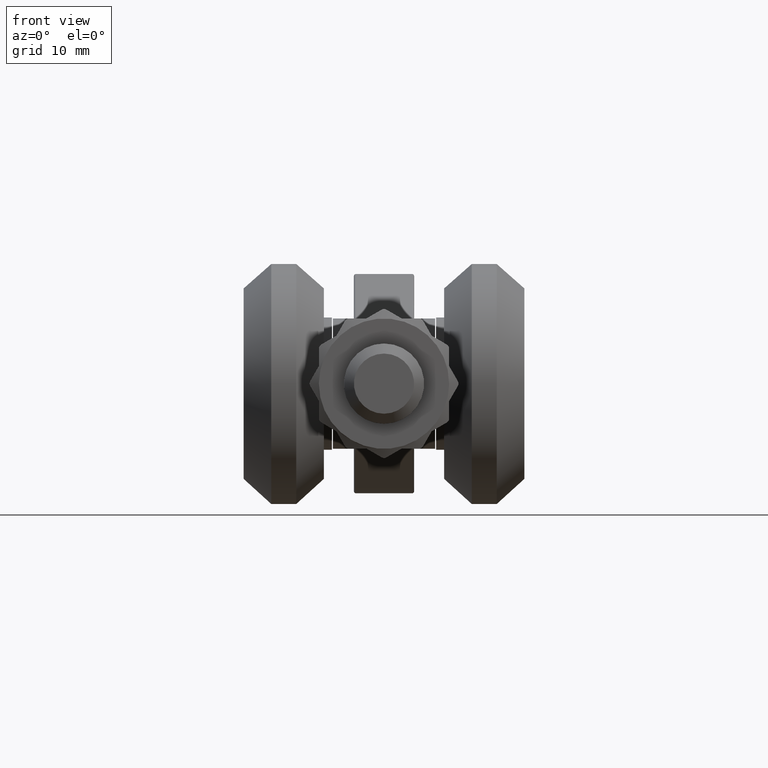
[diagram: clean part render]
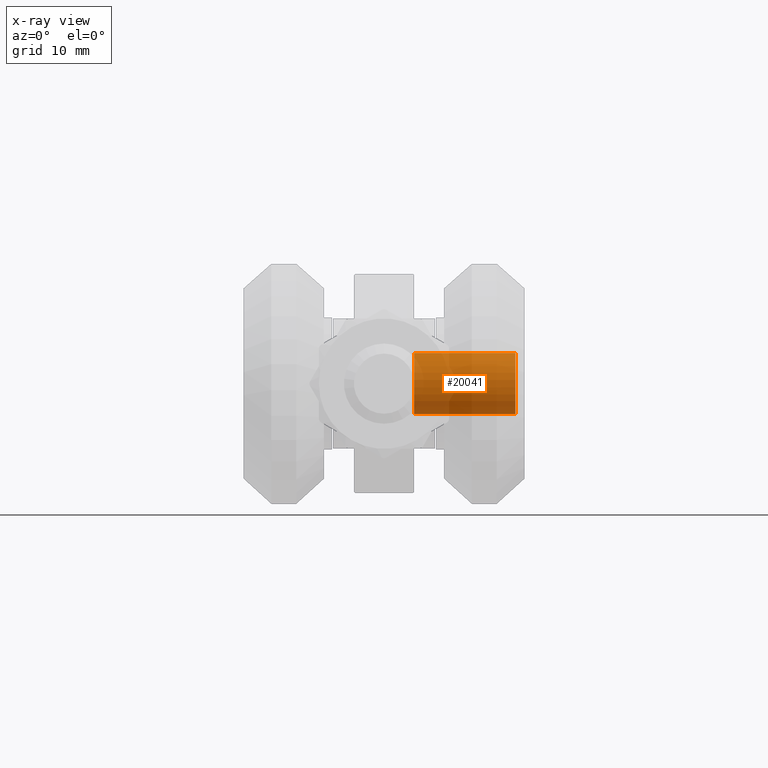
[diagram: x-ray — body ghosted, one internal face saturated and labeled with its STEP entity id]
A machine part, front view, then the same camera in x-ray: the body is ghosted and one INTERNAL B-rep face — a face not visible from any outside direction — is saturated and labeled: STEP entity #20041.
In plain terms, the highlighted cylindrical surface (bore or boss wall) has radius 3.05 mm, axis along (1, 0, 0).
Its self-contained STEP definition (entity closure, byte-faithful):
#1472 = VERTEX_POINT ( 'NONE', #25085 ) ;
#2182 = AXIS2_PLACEMENT_3D ( 'NONE', #27473, #10333, #25391 ) ;
#2373 = FACE_OUTER_BOUND ( 'NONE', #13400, .T. ) ;
#3251 = DIRECTION ( 'NONE',  ( 0.000000000000000000, 0.000000000000000000, -1.000000000000000000 ) ) ;
#4102 = VERTEX_POINT ( 'NONE', #13116 ) ;
#4413 = CYLINDRICAL_SURFACE ( 'NONE', #6166, 3.049999999999997158 ) ;
#5352 = ORIENTED_EDGE ( 'NONE', *, *, #11978, .F. ) ;
#6166 = AXIS2_PLACEMENT_3D ( 'NONE', #12065, #24866, #3251 ) ;
#7430 = FACE_OUTER_BOUND ( 'NONE', #22746, .T. ) ;
#8062 = CARTESIAN_POINT ( 'NONE',  ( 13.09999999999999076, 20.00000000000000355, 0.000000000000000000 ) ) ;
#10333 = DIRECTION ( 'NONE',  ( 1.000000000000000000, 0.000000000000000000, 0.000000000000000000 ) ) ;
#10708 = CIRCLE ( 'NONE', #2182, 3.049999999999997158 ) ;
#11978 = EDGE_CURVE ( 'NONE', #1472, #1472, #15557, .T. ) ;
#12065 = CARTESIAN_POINT ( 'NONE',  ( 13.79999999999999538, 20.00000000000000355, 0.000000000000000000 ) ) ;
#12261 = DIRECTION ( 'NONE',  ( 0.000000000000000000, 0.000000000000000000, -1.000000000000000000 ) ) ;
#13116 = CARTESIAN_POINT ( 'NONE',  ( 3.000000000000000888, 20.00000000000000355, -3.049999999999997158 ) ) ;
#13400 = EDGE_LOOP ( 'NONE', ( #5352 ) ) ;
#15557 = CIRCLE ( 'NONE', #26453, 3.049999999999997158 ) ;
#20041 = ADVANCED_FACE ( 'NONE', ( #7430, #2373 ), #4413, .T. ) ;
#21042 = EDGE_CURVE ( 'NONE', #4102, #4102, #10708, .T. ) ;
#22746 = EDGE_LOOP ( 'NONE', ( #24659 ) ) ;
#24659 = ORIENTED_EDGE ( 'NONE', *, *, #21042, .T. ) ;
#24866 = DIRECTION ( 'NONE',  ( 1.000000000000000000, -0.000000000000000000, -0.000000000000000000 ) ) ;
#25085 = CARTESIAN_POINT ( 'NONE',  ( 13.09999999999999076, 20.00000000000000355, -3.049999999999997158 ) ) ;
#25163 = DIRECTION ( 'NONE',  ( 1.000000000000000000, -0.000000000000000000, -0.000000000000000000 ) ) ;
#25391 = DIRECTION ( 'NONE',  ( 0.000000000000000000, 0.000000000000000000, -1.000000000000000000 ) ) ;
#26453 = AXIS2_PLACEMENT_3D ( 'NONE', #8062, #25163, #12261 ) ;
#27473 = CARTESIAN_POINT ( 'NONE',  ( 3.000000000000000888, 20.00000000000000355, 0.000000000000000000 ) ) ;